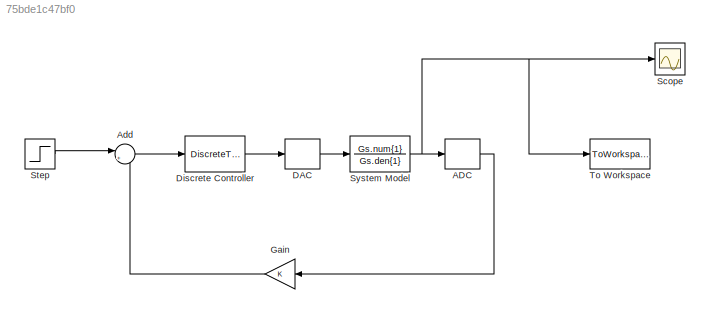
MODEL slx_75bde1c47bf0
KIND model
CONFIG AbsTol = auto
CONFIG FixedStep = 0.01
CONFIG MaxStep = auto
CONFIG MinStep = auto
CONFIG RelTol = 1e-3
CONFIG SampleTimeConstraint = Unconstrained
CONFIG Solver = ode45
CONFIG SolverMode = Auto
CONFIG SolverName = ode45
CONFIG StartTime = 0.0
CONFIG StopTime = 20
BLOCK [ZeroOrderHold] ADC
  SampleTime = Ts
BLOCK [Sum] Add
  IconShape = round
  InputSameDT = off
  Inputs = |+-
  OutDataTypeStr = Inherit: Inherit via internal rule
  Ports = [2, 1]
  SaturateOnIntegerOverflow = off
BLOCK [ZeroOrderHold] DAC
  SampleTime = Ts
BLOCK [DiscreteTransferFcn] Discrete Controller
  Denominator = Gcz.den{1}
  InputPortMap = u0
  Numerator = Gcz.num{1}
  Ports = [1, 1]
  SampleTime = Ts
BLOCK [Gain] Gain
  OutDataTypeStr = Inherit: Inherit via internal rule
  ParamDataTypeStr = Inherit: Inherit via internal rule
  SaturateOnIntegerOverflow = off
BLOCK [Scope] Scope
  Floating = off
  NumInputPorts = 1
  Ports = [1]
BLOCK [Step] Step
  SampleTime = 0
  Time = 0
BLOCK [TransferFcn] System Model
  Denominator = Gs.den{1}
  Numerator = Gs.num{1}
BLOCK [ToWorkspace] To Workspace
  FixptAsFi = on
  MaxDataPoints = inf
  Ports = [1]
  SampleTime = simout_sampling_time
  Save2DSignal = 3-D array (concatenate along third dimension)
  SaveFormat = Timeseries
  VariableName = simout
LINE ADC:1 -> Gain:1
LINE Add:1 -> Discrete Controller:1
LINE DAC:1 -> System Model:1
LINE Discrete Controller:1 -> DAC:1
LINE Gain:1 -> Add:2
LINE Step:1 -> Add:1
NET System Model:1 -> ADC:1, Scope:1, To Workspace:1
note: NET lines group one-source signal fan-out (src -> all destinations, sorted); 1:1 wires keep LINE
